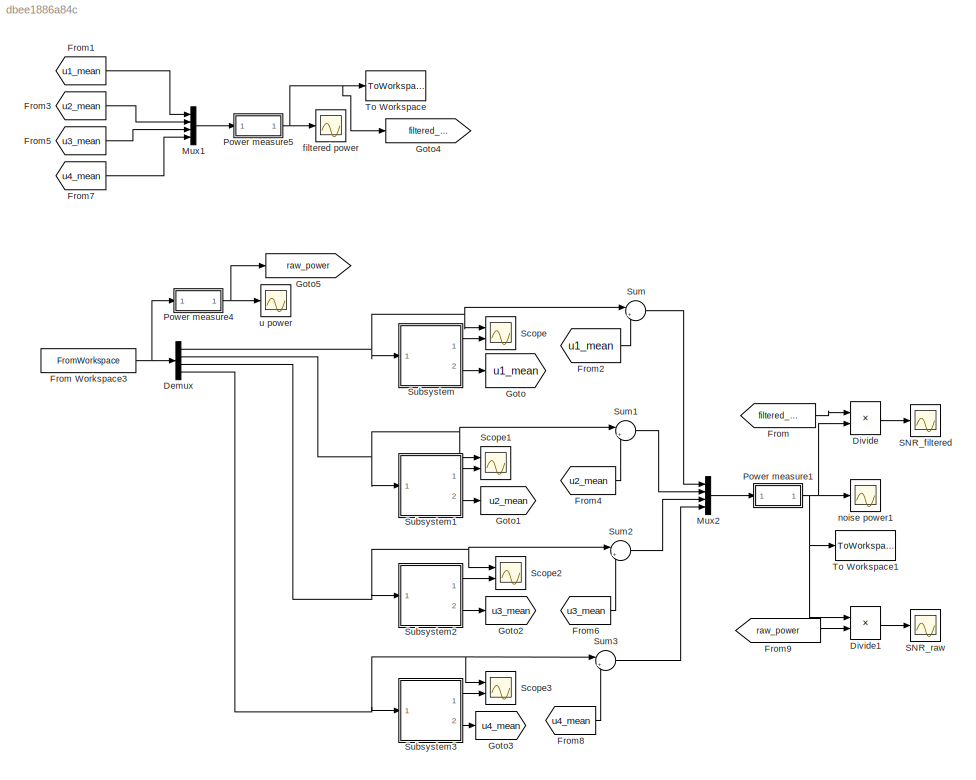
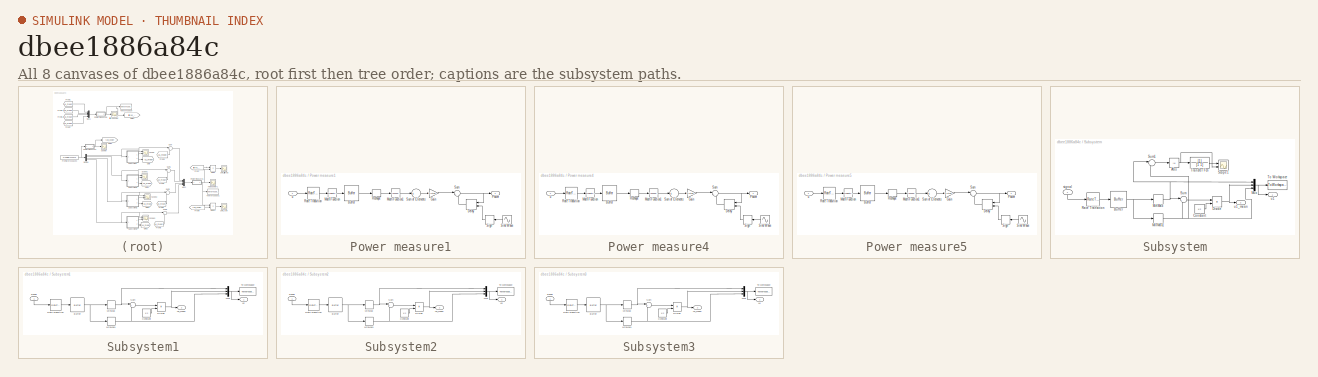
[diagram: thumbnail index - all 8 canvases of the model, root first then tree order]
MODEL slx_dbee1886a84c
KIND model
CONFIG AbsTol = auto
CONFIG EnableMultiTasking = off
CONFIG FixedStep = auto
CONFIG MaxStep = auto
CONFIG MinStep = auto
CONFIG RelTol = 1e-3
CONFIG SampleTimeConstraint = Unconstrained
CONFIG Solver = VariableStepAuto
CONFIG SolverName = VariableStepAuto
CONFIG StartTime = 0.0
CONFIG StopTime = 4
BLOCK [Demux] Demux
  DisplayOption = bar
  Ports = [1, 4]
BLOCK [Product] Divide
  InputSameDT = off
  Inputs = */
  OutDataTypeStr = Inherit: Inherit via internal rule
  Ports = [2, 1]
  RndMeth = Floor
  SaturateOnIntegerOverflow = off
BLOCK [Product] Divide1
  InputSameDT = off
  Inputs = /*
  OutDataTypeStr = Inherit: Inherit via internal rule
  Ports = [2, 1]
  RndMeth = Floor
  SaturateOnIntegerOverflow = off
BLOCK [From] From
  GotoTag = filtered_power
BLOCK [FromWorkspace] From Workspace3
  SampleTime = 0
  VariableName = controlSignal.u
  ZeroCross = on
BLOCK [From] From1
  GotoTag = u1_mean
BLOCK [From] From2
  GotoTag = u1_mean
BLOCK [From] From3
  GotoTag = u2_mean
BLOCK [From] From4
  GotoTag = u2_mean
BLOCK [From] From5
  GotoTag = u3_mean
BLOCK [From] From6
  GotoTag = u3_mean
BLOCK [From] From7
  GotoTag = u4_mean
BLOCK [From] From8
  GotoTag = u4_mean
BLOCK [From] From9
  GotoTag = raw_power
BLOCK [Goto] Goto
  GotoTag = u1_mean
BLOCK [Goto] Goto1
  GotoTag = u2_mean
BLOCK [Goto] Goto2
  GotoTag = u3_mean
BLOCK [Goto] Goto3
  GotoTag = u4_mean
BLOCK [Goto] Goto4
  GotoTag = filtered_power
BLOCK [Goto] Goto5
  GotoTag = raw_power
BLOCK [Mux] Mux1
  DisplayOption = bar
  Ports = [4, 1]
BLOCK [Mux] Mux2
  DisplayOption = bar
  Ports = [4, 1]
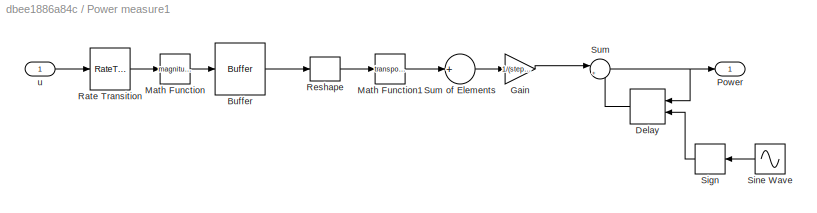
BLOCK [SubSystem] Power measure1
  Ports = [1, 1]
  RequestExecContextInheritance = off
  Variant = off
BLOCK [Buffer] Power measure1/Buffer
  N = 4* window/sampling
  OutputFrames = off
BLOCK [Delay] Power measure1/Delay
  DelayLength = 1
  ExternalReset = Either
  InputPortMap = u0,r5
  Ports = [2, 1]
BLOCK [Gain] Power measure1/Gain
  Gain = 1/(step_period/sampling)
  OutDataTypeStr = Inherit: Inherit via internal rule
  ParamDataTypeStr = Inherit: Inherit via internal rule
  SaturateOnIntegerOverflow = off
BLOCK [Math] Power measure1/Math Function
  Operator = magnitude^2
  Ports = [1, 1]
BLOCK [Math] Power measure1/Math Function1
  Operator = transpose
  Ports = [1, 1]
BLOCK [Outport] Power measure1/Power
  IconDisplay = Port number
BLOCK [RateTransition] Power measure1/Rate Transition
  OutPortSampleTime = sampling
BLOCK [Reshape] Power measure1/Reshape
  OutputDimensionality = Customize
  OutputDimensions = [4,window/sampling]
  Ports = [1, 1]
BLOCK [Signum] Power measure1/Sign
BLOCK [Sin] Power measure1/Sine Wave
  Frequency = 2*pi / (2 * step_period)
  Ports = [0, 1]
  SampleTime = window
BLOCK [Sum] Power measure1/Sum
  IconShape = round
  InputSameDT = off
  Inputs = |++
  OutDataTypeStr = Inherit: Inherit via internal rule
  Ports = [2, 1]
  SaturateOnIntegerOverflow = off
BLOCK [Sum] Power measure1/Sum of Elements
  CollapseMode = Specified dimension
  InputSameDT = off
  Inputs = +
  OutDataTypeStr = Inherit: Inherit via internal rule
  Ports = [1, 1]
  SaturateOnIntegerOverflow = off
BLOCK [Inport] Power measure1/u
  IconDisplay = Port number
BLOCK [SubSystem] Power measure4
  Ports = [1, 1]
  RequestExecContextInheritance = off
  Variant = off
BLOCK [Buffer] Power measure4/Buffer
  N = 4* window/sampling
  OutputFrames = off
BLOCK [Delay] Power measure4/Delay
  DelayLength = 1
  ExternalReset = Either
  InputPortMap = u0,r5
  Ports = [2, 1]
BLOCK [Gain] Power measure4/Gain
  Gain = 1/(step_period/sampling)
  OutDataTypeStr = Inherit: Inherit via internal rule
  ParamDataTypeStr = Inherit: Inherit via internal rule
  SaturateOnIntegerOverflow = off
BLOCK [Math] Power measure4/Math Function
  Operator = magnitude^2
  Ports = [1, 1]
BLOCK [Math] Power measure4/Math Function1
  Operator = transpose
  Ports = [1, 1]
BLOCK [Outport] Power measure4/Power
  IconDisplay = Port number
BLOCK [RateTransition] Power measure4/Rate Transition
  OutPortSampleTime = sampling
BLOCK [Reshape] Power measure4/Reshape
  OutputDimensionality = Customize
  OutputDimensions = [4,window/sampling]
  Ports = [1, 1]
BLOCK [Signum] Power measure4/Sign
BLOCK [Sin] Power measure4/Sine Wave
  Frequency = 2*pi / (2 * step_period)
  Ports = [0, 1]
  SampleTime = window
BLOCK [Sum] Power measure4/Sum
  IconShape = round
  InputSameDT = off
  Inputs = |++
  OutDataTypeStr = Inherit: Inherit via internal rule
  Ports = [2, 1]
  SaturateOnIntegerOverflow = off
BLOCK [Sum] Power measure4/Sum of Elements
  CollapseMode = Specified dimension
  InputSameDT = off
  Inputs = +
  OutDataTypeStr = Inherit: Inherit via internal rule
  Ports = [1, 1]
  SaturateOnIntegerOverflow = off
BLOCK [Inport] Power measure4/u
  IconDisplay = Port number
BLOCK [SubSystem] Power measure5
  Ports = [1, 1]
  RequestExecContextInheritance = off
  Variant = off
BLOCK [Buffer] Power measure5/Buffer
  N = 4* window/sampling
  OutputFrames = off
BLOCK [Delay] Power measure5/Delay
  DelayLength = 1
  ExternalReset = Either
  InputPortMap = u0,r5
  Ports = [2, 1]
BLOCK [Gain] Power measure5/Gain
  Gain = 1/(step_period/sampling)
  OutDataTypeStr = Inherit: Inherit via internal rule
  ParamDataTypeStr = Inherit: Inherit via internal rule
  SaturateOnIntegerOverflow = off
BLOCK [Math] Power measure5/Math Function
  Operator = magnitude^2
  Ports = [1, 1]
BLOCK [Math] Power measure5/Math Function1
  Operator = transpose
  Ports = [1, 1]
BLOCK [Outport] Power measure5/Power
  IconDisplay = Port number
BLOCK [RateTransition] Power measure5/Rate Transition
  OutPortSampleTime = sampling
BLOCK [Reshape] Power measure5/Reshape
  OutputDimensionality = Customize
  OutputDimensions = [4,window/sampling]
  Ports = [1, 1]
BLOCK [Signum] Power measure5/Sign
BLOCK [Sin] Power measure5/Sine Wave
  Frequency = 2*pi / (2 * step_period)
  Ports = [0, 1]
  SampleTime = window
BLOCK [Sum] Power measure5/Sum
  IconShape = round
  InputSameDT = off
  Inputs = |++
  OutDataTypeStr = Inherit: Inherit via internal rule
  Ports = [2, 1]
  SaturateOnIntegerOverflow = off
BLOCK [Sum] Power measure5/Sum of Elements
  CollapseMode = Specified dimension
  InputSameDT = off
  Inputs = +
  OutDataTypeStr = Inherit: Inherit via internal rule
  Ports = [1, 1]
  SaturateOnIntegerOverflow = off
BLOCK [Inport] Power measure5/u
  IconDisplay = Port number
BLOCK [Scope] SNR_filtered
  NumInputPorts = 1
  Ports = [1]
  ScopeSpecificationString = Simulink.scopes.TimeScopeBlockCfg('CurrentConfiguration', extmgr.ConfigurationSet(extmgr.Configuration('Core','General UI',true),extmgr.Configuration('Core','Source UI',true),extmgr.Configuration('Sources','WiredSimulink',true,'DataLoggingVariableName','ScopeData5'),extmgr.Configuration('Visuals','Time Domain',true,'SerializedDisplays',{struct('MinYLimReal','-1.19015','MaxYLimReal','10.71335','YLa...<+1470ch>
BLOCK [Scope] SNR_raw
  NumInputPorts = 1
  Ports = [1]
  ScopeSpecificationString = Simulink.scopes.TimeScopeBlockCfg('CurrentConfiguration', extmgr.ConfigurationSet(extmgr.Configuration('Core','General UI',true),extmgr.Configuration('Core','Source UI',true),extmgr.Configuration('Sources','WiredSimulink',true,'DataLoggingVariableName','ScopeData6'),extmgr.Configuration('Visuals','Time Domain',true,'SerializedDisplays',{struct('MinYLimReal','-1.92383','MaxYLimReal','22.73597','YLa...<+1519ch>
BLOCK [Scope] Scope
  NumInputPorts = 2
  Ports = [2]
  ScopeSpecificationString = Simulink.scopes.TimeScopeBlockCfg('CurrentConfiguration', extmgr.ConfigurationSet(extmgr.Configuration('Core','General UI',true),extmgr.Configuration('Core','Source UI',true),extmgr.Configuration('Sources','WiredSimulink',true,'DataLoggingVariableName','ScopeData1'),extmgr.Configuration('Visuals','Time Domain',true,'SerializedDisplays',{struct('MinYLimReal','-1000.00000','MaxYLimReal','1000.00000'...<+1525ch>
BLOCK [Scope] Scope1
  NumInputPorts = 2
  Ports = [2]
  ScopeSpecificationString = Simulink.scopes.TimeScopeBlockCfg('CurrentConfiguration', extmgr.ConfigurationSet(extmgr.Configuration('Core','General UI',true),extmgr.Configuration('Core','Source UI',true),extmgr.Configuration('Sources','WiredSimulink',true,'DataLoggingVariableName','ScopeData2'),extmgr.Configuration('Visuals','Time Domain',true,'SerializedDisplays',{struct('MinYLimReal','-1000.00000','MaxYLimReal','1000.00000'...<+1528ch>
BLOCK [Scope] Scope2
  NumInputPorts = 2
  Ports = [2]
  ScopeSpecificationString = Simulink.scopes.TimeScopeBlockCfg('CurrentConfiguration', extmgr.ConfigurationSet(extmgr.Configuration('Core','General UI',true),extmgr.Configuration('Core','Source UI',true),extmgr.Configuration('Sources','WiredSimulink',true,'DataLoggingVariableName','ScopeData3'),extmgr.Configuration('Visuals','Time Domain',true,'SerializedDisplays',{struct('MinYLimReal','-289.85507','MaxYLimReal','215.32091','...<+1522ch>
BLOCK [Scope] Scope3
  NumInputPorts = 2
  Ports = [2]
  ScopeSpecificationString = Simulink.scopes.TimeScopeBlockCfg('CurrentConfiguration', extmgr.ConfigurationSet(extmgr.Configuration('Core','General UI',true),extmgr.Configuration('Core','Source UI',true),extmgr.Configuration('Sources','WiredSimulink',true,'DataLoggingVariableName','ScopeData4'),extmgr.Configuration('Visuals','Time Domain',true,'SerializedDisplays',{struct('MinYLimReal','-56.75337','MaxYLimReal','43.55016','YL...<+1489ch>
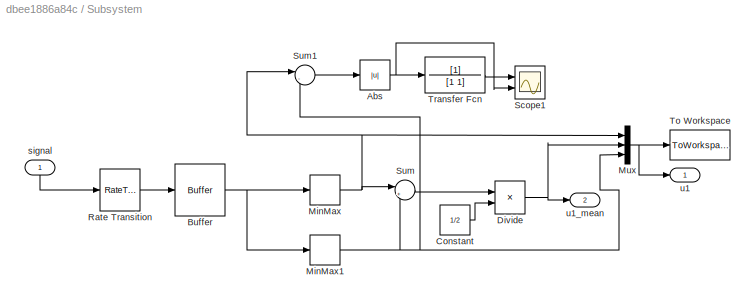
BLOCK [SubSystem] Subsystem
  Ports = [1, 2]
  RequestExecContextInheritance = off
  Variant = off
BLOCK [Abs] Subsystem/Abs
  SaturateOnIntegerOverflow = off
BLOCK [Buffer] Subsystem/Buffer
  N = window_size(1)
  OutputFrames = off
  V = window_size(1) - 1
BLOCK [Constant] Subsystem/Constant
  Value = 1/2
BLOCK [Product] Subsystem/Divide
  InputSameDT = off
  OutDataTypeStr = Inherit: Inherit via internal rule
  Ports = [2, 1]
BLOCK [MinMax] Subsystem/MinMax
  InputSameDT = off
  Ports = [1, 1]
  SaturateOnIntegerOverflow = off
BLOCK [MinMax] Subsystem/MinMax1
  Function = max
  InputSameDT = off
  Ports = [1, 1]
  SaturateOnIntegerOverflow = off
BLOCK [Mux] Subsystem/Mux
  DisplayOption = bar
  Inputs = 3
  Ports = [3, 1]
BLOCK [RateTransition] Subsystem/Rate Transition
  OutPortSampleTime = simulation_step
BLOCK [Scope] Subsystem/Scope1
  NumInputPorts = 2
  Ports = [2]
  ScopeSpecificationString = Simulink.scopes.TimeScopeBlockCfg('CurrentConfiguration', extmgr.ConfigurationSet(extmgr.Configuration('Core','General UI',true),extmgr.Configuration('Core','Source UI',true),extmgr.Configuration('Sources','WiredSimulink',true,'DataLoggingVariableName','ScopeData2'),extmgr.Configuration('Visuals','Time Domain',true,'SerializedDisplays',{struct('MinYLimReal','-200.00000','MaxYLimReal','1800.00000',...<+1444ch>
BLOCK [Sum] Subsystem/Sum
  IconShape = round
  InputSameDT = off
  Inputs = |++
  OutDataTypeStr = Inherit: Inherit via internal rule
  Ports = [2, 1]
  SaturateOnIntegerOverflow = off
BLOCK [Sum] Subsystem/Sum1
  IconShape = round
  InputSameDT = off
  Inputs = |-+
  OutDataTypeStr = Inherit: Inherit via internal rule
  Ports = [2, 1]
  SaturateOnIntegerOverflow = off
BLOCK [ToWorkspace] Subsystem/To Workspace
  FixptAsFi = on
  MaxDataPoints = inf
  Ports = [1]
  SampleTime = -1
  Save2DSignal = 3-D array (concatenate along third dimension)
  SaveFormat = Timeseries
  VariableName = u1
BLOCK [TransferFcn] Subsystem/Transfer Fcn
  Denominator = [1 1]
BLOCK [Inport] Subsystem/signal
  IconDisplay = Port number
BLOCK [Outport] Subsystem/u1
  IconDisplay = Port number
BLOCK [Outport] Subsystem/u1_mean
  IconDisplay = Port number
  Port = 2
BLOCK [SubSystem] Subsystem1
  Ports = [1, 2]
  RequestExecContextInheritance = off
  Variant = off
BLOCK [Buffer] Subsystem1/Buffer
  N = window_size(2)
  OutputFrames = off
  V = window_size(2) - 1
BLOCK [Constant] Subsystem1/Constant
  Value = 1/2
BLOCK [Product] Subsystem1/Divide
  InputSameDT = off
  OutDataTypeStr = Inherit: Inherit via internal rule
  Ports = [2, 1]
BLOCK [MinMax] Subsystem1/MinMax
  InputSameDT = off
  Ports = [1, 1]
  SaturateOnIntegerOverflow = off
BLOCK [MinMax] Subsystem1/MinMax1
  Function = max
  InputSameDT = off
  Ports = [1, 1]
  SaturateOnIntegerOverflow = off
BLOCK [Mux] Subsystem1/Mux
  DisplayOption = bar
  Inputs = 3
  Ports = [3, 1]
BLOCK [RateTransition] Subsystem1/Rate Transition
  OutPortSampleTime = simulation_step
BLOCK [Sum] Subsystem1/Sum
  IconShape = round
  InputSameDT = off
  Inputs = |++
  OutDataTypeStr = Inherit: Inherit via internal rule
  Ports = [2, 1]
  SaturateOnIntegerOverflow = off
BLOCK [ToWorkspace] Subsystem1/To Workspace
  FixptAsFi = on
  MaxDataPoints = inf
  Ports = [1]
  SampleTime = -1
  Save2DSignal = 3-D array (concatenate along third dimension)
  SaveFormat = Timeseries
  VariableName = u2
BLOCK [Inport] Subsystem1/signal
  IconDisplay = Port number
BLOCK [Outport] Subsystem1/u2
  IconDisplay = Port number
BLOCK [Outport] Subsystem1/u2_mean
  IconDisplay = Port number
  Port = 2
BLOCK [SubSystem] Subsystem2
  Ports = [1, 2]
  RequestExecContextInheritance = off
  Variant = off
BLOCK [Buffer] Subsystem2/Buffer
  N = window_size(3)
  OutputFrames = off
  V = window_size(3) - 1
BLOCK [Constant] Subsystem2/Constant
  Value = 1/2
BLOCK [Product] Subsystem2/Divide
  InputSameDT = off
  OutDataTypeStr = Inherit: Inherit via internal rule
  Ports = [2, 1]
BLOCK [MinMax] Subsystem2/MinMax
  InputSameDT = off
  Ports = [1, 1]
  SaturateOnIntegerOverflow = off
BLOCK [MinMax] Subsystem2/MinMax1
  Function = max
  InputSameDT = off
  Ports = [1, 1]
  SaturateOnIntegerOverflow = off
BLOCK [Mux] Subsystem2/Mux
  DisplayOption = bar
  Inputs = 3
  Ports = [3, 1]
BLOCK [RateTransition] Subsystem2/Rate Transition
  OutPortSampleTime = simulation_step
BLOCK [Sum] Subsystem2/Sum
  IconShape = round
  InputSameDT = off
  Inputs = |++
  OutDataTypeStr = Inherit: Inherit via internal rule
  Ports = [2, 1]
  SaturateOnIntegerOverflow = off
BLOCK [ToWorkspace] Subsystem2/To Workspace
  FixptAsFi = on
  MaxDataPoints = inf
  Ports = [1]
  SampleTime = -1
  Save2DSignal = 3-D array (concatenate along third dimension)
  SaveFormat = Timeseries
  VariableName = u3
BLOCK [Inport] Subsystem2/signal
  IconDisplay = Port number
BLOCK [Outport] Subsystem2/u3
  IconDisplay = Port number
BLOCK [Outport] Subsystem2/u3_mean
  IconDisplay = Port number
  Port = 2
BLOCK [SubSystem] Subsystem3
  Ports = [1, 2]
  RequestExecContextInheritance = off
  Variant = off
BLOCK [Buffer] Subsystem3/Buffer
  N = window_size(4)
  OutputFrames = off
  V = window_size(4) - 1
BLOCK [Constant] Subsystem3/Constant
  Value = 1/2
BLOCK [Product] Subsystem3/Divide
  InputSameDT = off
  OutDataTypeStr = Inherit: Inherit via internal rule
  Ports = [2, 1]
BLOCK [MinMax] Subsystem3/MinMax
  InputSameDT = off
  Ports = [1, 1]
  SaturateOnIntegerOverflow = off
BLOCK [MinMax] Subsystem3/MinMax1
  Function = max
  InputSameDT = off
  Ports = [1, 1]
  SaturateOnIntegerOverflow = off
BLOCK [Mux] Subsystem3/Mux
  DisplayOption = bar
  Inputs = 3
  Ports = [3, 1]
BLOCK [RateTransition] Subsystem3/Rate Transition
  OutPortSampleTime = simulation_step
BLOCK [Sum] Subsystem3/Sum
  IconShape = round
  InputSameDT = off
  Inputs = |++
  OutDataTypeStr = Inherit: Inherit via internal rule
  Ports = [2, 1]
  SaturateOnIntegerOverflow = off
BLOCK [ToWorkspace] Subsystem3/To Workspace
  FixptAsFi = on
  MaxDataPoints = inf
  Ports = [1]
  SampleTime = -1
  Save2DSignal = 3-D array (concatenate along third dimension)
  SaveFormat = Timeseries
  VariableName = u4
BLOCK [Inport] Subsystem3/signal
  IconDisplay = Port number
BLOCK [Outport] Subsystem3/u4
  IconDisplay = Port number
BLOCK [Outport] Subsystem3/u4_mean
  IconDisplay = Port number
  Port = 2
BLOCK [Sum] Sum
  IconShape = round
  InputSameDT = off
  Inputs = |+-
  OutDataTypeStr = Inherit: Inherit via internal rule
  Ports = [2, 1]
  SaturateOnIntegerOverflow = off
BLOCK [Sum] Sum1
  IconShape = round
  InputSameDT = off
  Inputs = |+-
  OutDataTypeStr = Inherit: Inherit via internal rule
  Ports = [2, 1]
  SaturateOnIntegerOverflow = off
BLOCK [Sum] Sum2
  IconShape = round
  InputSameDT = off
  Inputs = |+-
  OutDataTypeStr = Inherit: Inherit via internal rule
  Ports = [2, 1]
  SaturateOnIntegerOverflow = off
BLOCK [Sum] Sum3
  IconShape = round
  InputSameDT = off
  Inputs = |+-
  OutDataTypeStr = Inherit: Inherit via internal rule
  Ports = [2, 1]
  SaturateOnIntegerOverflow = off
BLOCK [ToWorkspace] To Workspace
  FixptAsFi = on
  MaxDataPoints = inf
  Ports = [1]
  SampleTime = -1
  Save2DSignal = 3-D array (concatenate along third dimension)
  SaveFormat = Timeseries
  VariableName = filtered_power
BLOCK [ToWorkspace] To Workspace1
  FixptAsFi = on
  MaxDataPoints = inf
  Ports = [1]
  SampleTime = -1
  Save2DSignal = 3-D array (concatenate along third dimension)
  SaveFormat = Timeseries
  VariableName = noise_power
BLOCK [Scope] filtered power
  NumInputPorts = 1
  Ports = [1]
  ScopeSpecificationString = Simulink.scopes.TimeScopeBlockCfg('CurrentConfiguration', extmgr.ConfigurationSet(extmgr.Configuration('Core','General UI',true),extmgr.Configuration('Core','Source UI',true),extmgr.Configuration('Sources','WiredSimulink',true,'DataLoggingVariableName','ScopeData10'),extmgr.Configuration('Visuals','Time Domain',true,'SerializedDisplays',{struct('MinYLimReal','-18390.7494','MaxYLimReal','165517.986...<+1556ch>
BLOCK [Scope] noise power1
  NumInputPorts = 1
  Ports = [1]
  ScopeSpecificationString = Simulink.scopes.TimeScopeBlockCfg('CurrentConfiguration', extmgr.ConfigurationSet(extmgr.Configuration('Core','General UI',true),extmgr.Configuration('Core','Source UI',true),extmgr.Configuration('Sources','WiredSimulink',true,'DataLoggingVariableName','ScopeData3'),extmgr.Configuration('Visuals','Time Domain',true,'SerializedDisplays',{struct('MinYLimReal','-19004.69061','MaxYLimReal','171042.241...<+1555ch>
BLOCK [Scope] u power
  NumInputPorts = 1
  Ports = [1]
  ScopeSpecificationString = Simulink.scopes.TimeScopeBlockCfg('CurrentConfiguration', extmgr.ConfigurationSet(extmgr.Configuration('Core','General UI',true),extmgr.Configuration('Core','Source UI',true),extmgr.Configuration('Sources','WiredSimulink',true,'DataLoggingVariableName','ScopeData9'),extmgr.Configuration('Visuals','Time Domain',true,'SerializedDisplays',{struct('MinYLimReal','-24660.07332','MaxYLimReal','221940.884...<+1557ch>
NET Demux:1 -> Scope:1, Subsystem:1, Sum:1
NET Demux:2 -> Scope1:1, Subsystem1:1, Sum1:1
NET Demux:3 -> Scope2:1, Subsystem2:1, Sum2:1
NET Demux:4 -> Scope3:1, Subsystem3:1, Sum3:1
LINE Divide1:1 -> SNR_raw:1
LINE Divide:1 -> SNR_filtered:1
NET From Workspace3:1 -> Demux:1, Power measure4:1
LINE From1:1 -> Mux1:1
LINE From2:1 -> Sum:2
LINE From3:1 -> Mux1:2
LINE From4:1 -> Sum1:2
LINE From5:1 -> Mux1:3
LINE From6:1 -> Sum2:2
LINE From7:1 -> Mux1:4
LINE From8:1 -> Sum3:2
LINE From9:1 -> Divide1:2
LINE From:1 -> Divide:1
LINE Mux1:1 -> Power measure5:1
LINE Mux2:1 -> Power measure1:1
LINE Power measure1/Buffer:1 -> Power measure1/Reshape:1
LINE Power measure1/Delay:1 -> Power measure1/Sum:2
LINE Power measure1/Gain:1 -> Power measure1/Sum:1
LINE Power measure1/Math Function1:1 -> Power measure1/Sum of Elements:1
LINE Power measure1/Math Function:1 -> Power measure1/Buffer:1
LINE Power measure1/Rate Transition:1 -> Power measure1/Math Function:1
LINE Power measure1/Reshape:1 -> Power measure1/Math Function1:1
LINE Power measure1/Sign:1 -> Power measure1/Delay:2
LINE Power measure1/Sine Wave:1 -> Power measure1/Sign:1
LINE Power measure1/Sum of Elements:1 -> Power measure1/Gain:1
NET Power measure1/Sum:1 -> Power measure1/Delay:1, Power measure1/Power:1
LINE Power measure1/u:1 -> Power measure1/Rate Transition:1
NET Power measure1:1 -> Divide1:1, Divide:2, To Workspace1:1, noise power1:1
LINE Power measure4/Buffer:1 -> Power measure4/Reshape:1
LINE Power measure4/Delay:1 -> Power measure4/Sum:2
LINE Power measure4/Gain:1 -> Power measure4/Sum:1
LINE Power measure4/Math Function1:1 -> Power measure4/Sum of Elements:1
LINE Power measure4/Math Function:1 -> Power measure4/Buffer:1
LINE Power measure4/Rate Transition:1 -> Power measure4/Math Function:1
LINE Power measure4/Reshape:1 -> Power measure4/Math Function1:1
LINE Power measure4/Sign:1 -> Power measure4/Delay:2
LINE Power measure4/Sine Wave:1 -> Power measure4/Sign:1
LINE Power measure4/Sum of Elements:1 -> Power measure4/Gain:1
NET Power measure4/Sum:1 -> Power measure4/Delay:1, Power measure4/Power:1
LINE Power measure4/u:1 -> Power measure4/Rate Transition:1
NET Power measure4:1 -> Goto5:1, u power:1
LINE Power measure5/Buffer:1 -> Power measure5/Reshape:1
LINE Power measure5/Delay:1 -> Power measure5/Sum:2
LINE Power measure5/Gain:1 -> Power measure5/Sum:1
LINE Power measure5/Math Function1:1 -> Power measure5/Sum of Elements:1
LINE Power measure5/Math Function:1 -> Power measure5/Buffer:1
LINE Power measure5/Rate Transition:1 -> Power measure5/Math Function:1
LINE Power measure5/Reshape:1 -> Power measure5/Math Function1:1
LINE Power measure5/Sign:1 -> Power measure5/Delay:2
LINE Power measure5/Sine Wave:1 -> Power measure5/Sign:1
LINE Power measure5/Sum of Elements:1 -> Power measure5/Gain:1
NET Power measure5/Sum:1 -> Power measure5/Delay:1, Power measure5/Power:1
LINE Power measure5/u:1 -> Power measure5/Rate Transition:1
NET Power measure5:1 -> Goto4:1, To Workspace:1, filtered power:1
NET Subsystem/Abs:1 -> Subsystem/Scope1:2, Subsystem/Transfer Fcn:1
NET Subsystem/Buffer:1 -> Subsystem/MinMax1:1, Subsystem/MinMax:1
LINE Subsystem/Constant:1 -> Subsystem/Divide:2
NET Subsystem/Divide:1 -> Subsystem/Mux:2, Subsystem/u1_mean:1
NET Subsystem/MinMax1:1 -> Subsystem/Mux:3, Subsystem/Sum1:2, Subsystem/Sum:2
NET Subsystem/MinMax:1 -> Subsystem/Mux:1, Subsystem/Sum1:1, Subsystem/Sum:1
NET Subsystem/Mux:1 -> Subsystem/To Workspace:1, Subsystem/u1:1
LINE Subsystem/Rate Transition:1 -> Subsystem/Buffer:1
LINE Subsystem/Sum1:1 -> Subsystem/Abs:1
LINE Subsystem/Sum:1 -> Subsystem/Divide:1
LINE Subsystem/Transfer Fcn:1 -> Subsystem/Scope1:1
LINE Subsystem/signal:1 -> Subsystem/Rate Transition:1
NET Subsystem1/Buffer:1 -> Subsystem1/MinMax1:1, Subsystem1/MinMax:1
LINE Subsystem1/Constant:1 -> Subsystem1/Divide:2
NET Subsystem1/Divide:1 -> Subsystem1/Mux:2, Subsystem1/u2_mean:1
NET Subsystem1/MinMax1:1 -> Subsystem1/Mux:3, Subsystem1/Sum:2
NET Subsystem1/MinMax:1 -> Subsystem1/Mux:1, Subsystem1/Sum:1
NET Subsystem1/Mux:1 -> Subsystem1/To Workspace:1, Subsystem1/u2:1
LINE Subsystem1/Rate Transition:1 -> Subsystem1/Buffer:1
LINE Subsystem1/Sum:1 -> Subsystem1/Divide:1
LINE Subsystem1/signal:1 -> Subsystem1/Rate Transition:1
LINE Subsystem1:1 -> Scope1:2
LINE Subsystem1:2 -> Goto1:1
NET Subsystem2/Buffer:1 -> Subsystem2/MinMax1:1, Subsystem2/MinMax:1
LINE Subsystem2/Constant:1 -> Subsystem2/Divide:2
NET Subsystem2/Divide:1 -> Subsystem2/Mux:2, Subsystem2/u3_mean:1
NET Subsystem2/MinMax1:1 -> Subsystem2/Mux:3, Subsystem2/Sum:2
NET Subsystem2/MinMax:1 -> Subsystem2/Mux:1, Subsystem2/Sum:1
NET Subsystem2/Mux:1 -> Subsystem2/To Workspace:1, Subsystem2/u3:1
LINE Subsystem2/Rate Transition:1 -> Subsystem2/Buffer:1
LINE Subsystem2/Sum:1 -> Subsystem2/Divide:1
LINE Subsystem2/signal:1 -> Subsystem2/Rate Transition:1
LINE Subsystem2:1 -> Scope2:2
LINE Subsystem2:2 -> Goto2:1
NET Subsystem3/Buffer:1 -> Subsystem3/MinMax1:1, Subsystem3/MinMax:1
LINE Subsystem3/Constant:1 -> Subsystem3/Divide:2
NET Subsystem3/Divide:1 -> Subsystem3/Mux:2, Subsystem3/u4_mean:1
NET Subsystem3/MinMax1:1 -> Subsystem3/Mux:3, Subsystem3/Sum:2
NET Subsystem3/MinMax:1 -> Subsystem3/Mux:1, Subsystem3/Sum:1
NET Subsystem3/Mux:1 -> Subsystem3/To Workspace:1, Subsystem3/u4:1
LINE Subsystem3/Rate Transition:1 -> Subsystem3/Buffer:1
LINE Subsystem3/Sum:1 -> Subsystem3/Divide:1
LINE Subsystem3/signal:1 -> Subsystem3/Rate Transition:1
LINE Subsystem3:1 -> Scope3:2
LINE Subsystem3:2 -> Goto3:1
LINE Subsystem:1 -> Scope:2
LINE Subsystem:2 -> Goto:1
LINE Sum1:1 -> Mux2:2
LINE Sum2:1 -> Mux2:3
LINE Sum3:1 -> Mux2:4
LINE Sum:1 -> Mux2:1
note: NET lines group one-source signal fan-out (src -> all destinations, sorted); 1:1 wires keep LINE
